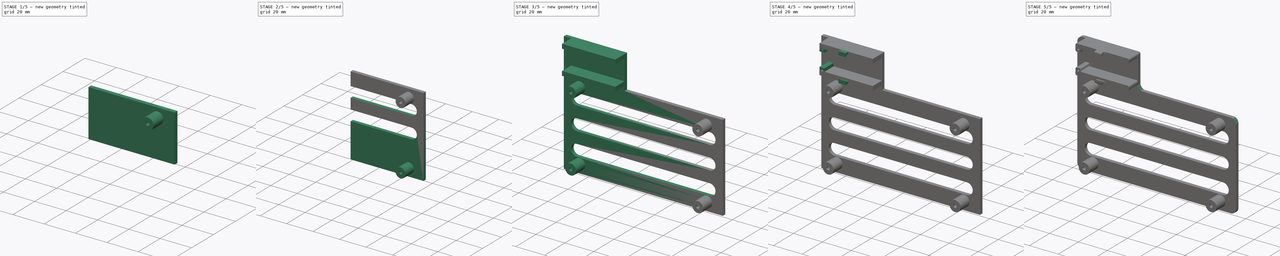
[diagram: build sequence overview — one tinted view per stage of 5, left to right]
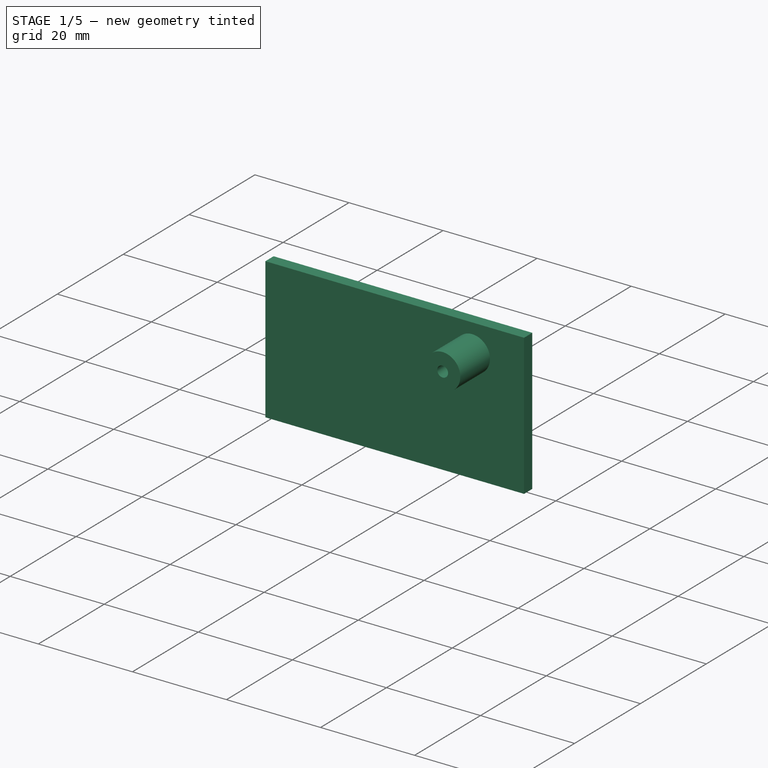
[diagram: stage 1 of 5 — iso view after this stage's code; geometry added in this stage tinted green]
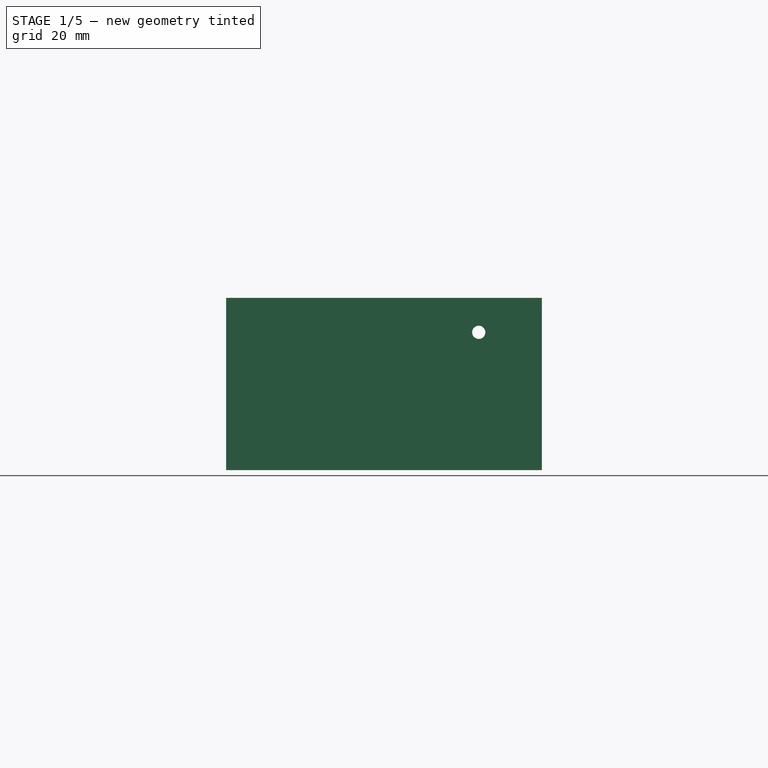
[diagram: stage 1 of 5 — front view after this stage's code; geometry added in this stage tinted green]
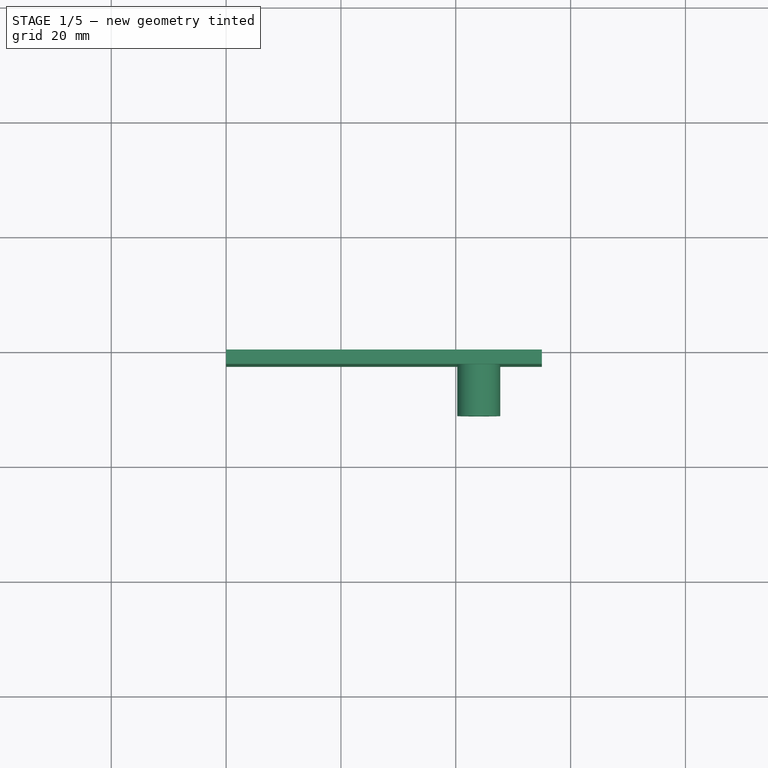
[diagram: stage 1 of 5 — top view after this stage's code; geometry added in this stage tinted green]
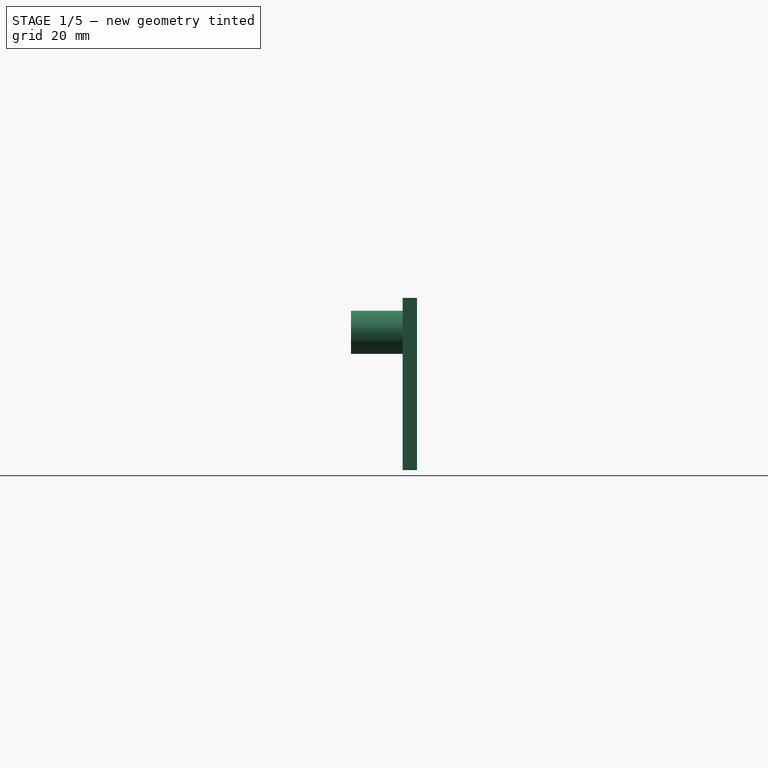
[diagram: stage 1 of 5 — right view after this stage's code; geometry added in this stage tinted green]
FCSTD DOCUMENT  (FreeCAD 1.0R39319 (Git))
Label: ConnectorBoardv2-Mod_Carrier_WIP
License: All rights reserved
LicenseURL: https://en.wikipedia.org/wiki/All_rights_reserved
objects: Sketcher::SketchObject×9, PartDesign::Pad×6, PartDesign::Pocket×3, PartDesign::Fillet×3, PartDesign::Mirrored×2, PartDesign::LinearPattern×2, PartDesign::Body×1, App::Part×1
note: 63 computed .brp shape members not serialized (recipe doc carries the construction recipe); baked Part::Feature solids carry a one-line shape summary decoded from their .brp

FEATURE [Sketcher::SketchObject] Sketch
  ArcFitTolerance = 1e-06
  AttachmentSupport = -> [XZ_Plane001]
  FullyConstrained = true
  MakeInternals = false
  MapMode = 5
  Placement = pos=(0,0,0) rot=(1,0,0;1.5708rad)
  sketch-geometry (4):
    g0: LineSegment StartX=0 StartY=0 StartZ=0 EndX=55 EndY=0 EndZ=0
    g1: LineSegment StartX=55 StartY=0 StartZ=0 EndX=55 EndY=30 EndZ=0
    g2: LineSegment StartX=55 StartY=30 StartZ=0 EndX=0 EndY=30 EndZ=0
    g3: LineSegment StartX=0 StartY=30 StartZ=0 EndX=0 EndY=0 EndZ=0
  constraints (11):
    c: Coincident(g0,g1)
    c: Coincident(g1,g2)
    c: Coincident(g2,g3)
    c: Coincident(g3,g0)
    c: Horizontal(g0)
    c: Horizontal(g2)
    c: Vertical(g1)
    c: Vertical(g3)
    c: Coincident(g0,g-1)
    c: DistanceX(g2,g2) = 55
    c: DistanceY(g1,g1) = 30
FEATURE [PartDesign::Pad] Pad
  Direction = (0,-1,2e-16)
  Length = 2.5
  Length2 = 10
  Placement = pos=(0,0,0) rot=(1,0,0;1.5708rad)
  Profile = -> Sketch
  ReferenceAxis = -> Sketch [N_Axis]
  Refine = true
  Suppressed = false
  Type = 0
FEATURE [Sketcher::SketchObject] Sketch001
  ArcFitTolerance = 1e-06
  AttachmentSupport = -> [Pad]
  FullyConstrained = true
  MakeInternals = false
  MapMode = 5
  Placement = pos=(0,-2.5,0) rot=(1,0,0;1.5708rad)
  sketch-geometry (1):
    g0: Circle CenterX=44 CenterY=24 CenterZ=0 NormalX=0 NormalY=0 NormalZ=1 AngleXU=0 Radius=3.75
  constraints (3):
    c: Diameter(g0) = 7.5
    c: Distance(g0,g-1) = 24
    c: Distance(g0,g-2) = 44
FEATURE [PartDesign::Pad] Pad001
  BaseFeature = -> Pad
  Direction = (0,-1,2e-16)
  Length = 9
  Length2 = 10
  Placement = pos=(0,0,0) rot=(1,0,0;1.5708rad)
  Profile = -> Sketch001
  ReferenceAxis = -> Sketch001 [N_Axis]
  Refine = true
  Suppressed = false
  Type = 0
FEATURE [Sketcher::SketchObject] Sketch002
  ArcFitTolerance = 1e-06
  AttachmentSupport = -> [Pad001]
  ExternalGeometry = -> [Pad001]
  FullyConstrained = true
  MakeInternals = false
  MapMode = 5
  Placement = pos=(0,-11.5,3.1e-15) rot=(1,0,0;1.5708rad)
  sketch-geometry (1):
    g0: Circle CenterX=44 CenterY=24 CenterZ=0 NormalX=0 NormalY=0 NormalZ=1 AngleXU=0 Radius=1.15
  constraints (2):
    c: Coincident(g0,g-3)
    c: Diameter(g0) = 2.3
FEATURE [PartDesign::Pocket] Pocket
  BaseFeature = -> Pad001
  Direction = (0,1,-2e-16)
  Length = 5
  Length2 = 5
  Placement = pos=(0,0,0) rot=(1,0,0;1.5708rad)
  Profile = -> Sketch002
  ReferenceAxis = -> Sketch002 [N_Axis]
  Refine = true
  Suppressed = false
  Type = 1
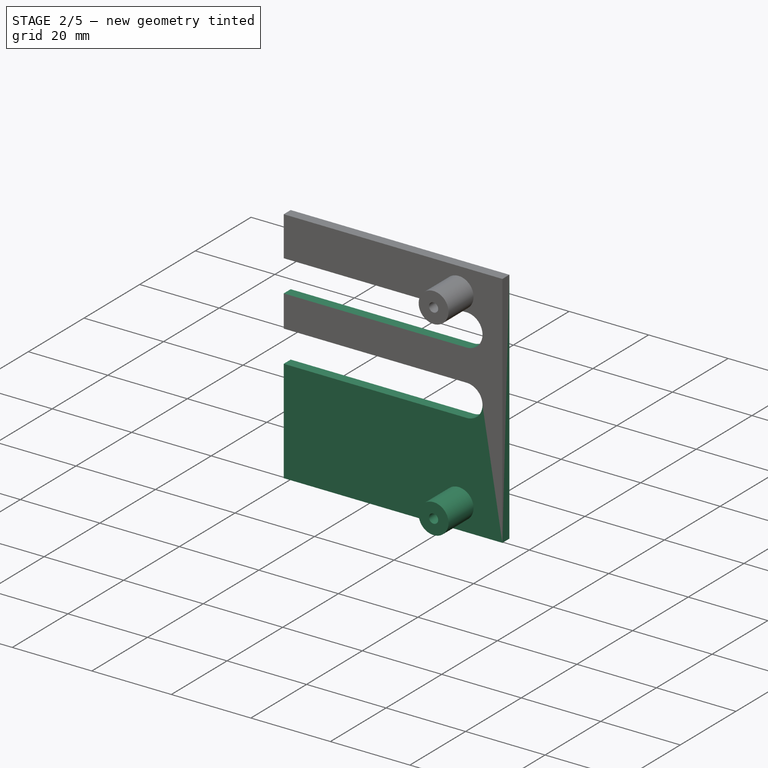
[diagram: stage 2 of 5 — iso view after this stage's code; geometry added in this stage tinted green]
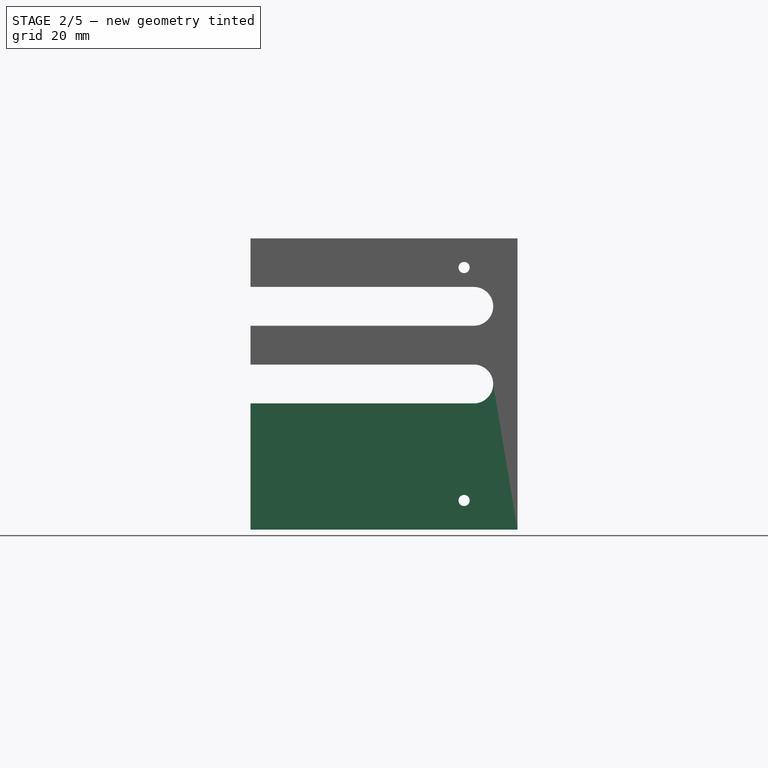
[diagram: stage 2 of 5 — front view after this stage's code; geometry added in this stage tinted green]
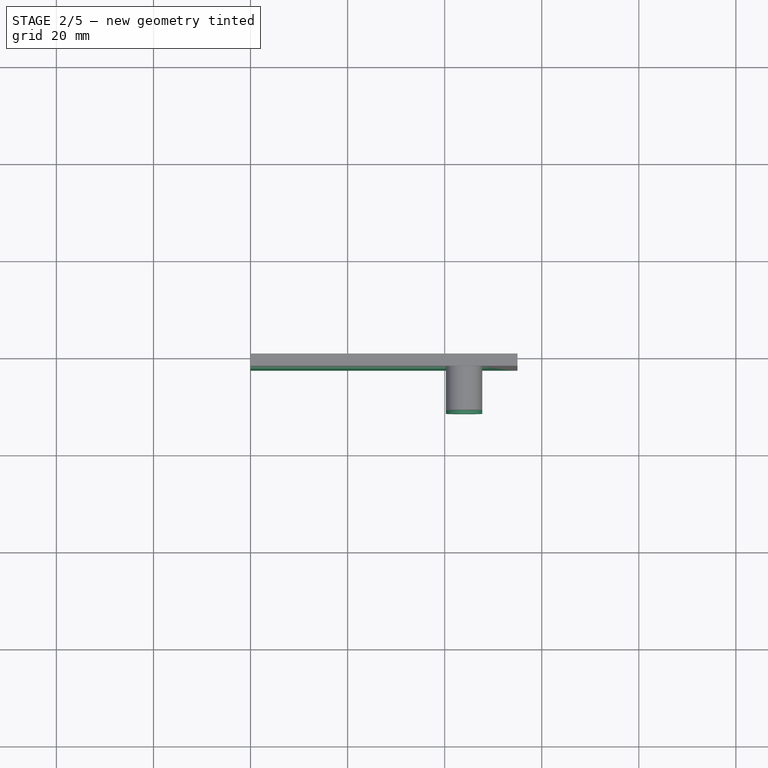
[diagram: stage 2 of 5 — top view after this stage's code; geometry added in this stage tinted green]
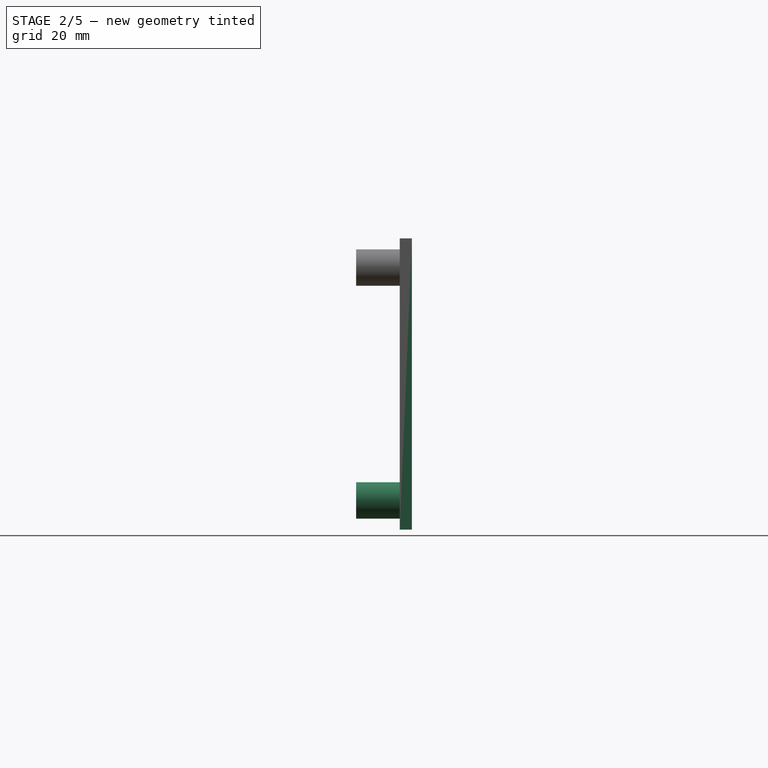
[diagram: stage 2 of 5 — right view after this stage's code; geometry added in this stage tinted green]
FEATURE [Sketcher::SketchObject] Sketch003
  ArcFitTolerance = 1e-06
  AttachmentSupport = -> [Pocket]
  FullyConstrained = true
  MakeInternals = false
  MapMode = 5
  Placement = pos=(0,-2.5,0) rot=(1,0,0;1.5708rad)
  sketch-geometry (4):
    g0: ArcOfCircle CenterX=0 CenterY=0 CenterZ=0 NormalX=0 NormalY=0 NormalZ=1 AngleXU=0 Radius=4 StartAngle=1.5708 EndAngle=4.71239
    g1: ArcOfCircle CenterX=46 CenterY=1e-16 CenterZ=0 NormalX=0 NormalY=0 NormalZ=1 AngleXU=0 Radius=4 StartAngle=4.71239 EndAngle=7.85398
    g2: LineSegment StartX=6.5994e-12 StartY=4 StartZ=0 EndX=46 EndY=4 EndZ=0
    g3: LineSegment StartX=-7e-16 StartY=-4 StartZ=0 EndX=46 EndY=-4 EndZ=0
  constraints (9):
    c: Tangent(g0,g2) = 1.5708
    c: Tangent(g0,g3) = -1.5708
    c: Tangent(g1,g2) = 1.5708
    c: Tangent(g1,g3) = -1.5708
    c: Equal(g0,g1)
    c: Horizontal(g3)
    c: Coincident(g0,g-1)
    c: Distance(g2,g-1) = 4
    c: DistanceX(g2,g2) = 46
FEATURE [PartDesign::Pocket] Pocket001
  BaseFeature = -> Pocket
  Direction = (0,1,-2e-16)
  Length = 5
  Length2 = 5
  Placement = pos=(0,0,0) rot=(1,0,0;1.5708rad)
  Profile = -> Sketch003
  ReferenceAxis = -> Sketch003 [N_Axis]
  Refine = true
  Suppressed = false
  Type = 1
FEATURE [PartDesign::Mirrored] Mirrored
  BaseFeature = -> Pocket001
  MirrorPlane = -> XY_Plane001
  Placement = pos=(0,0,0) rot=(1,0,0;1.5708rad)
  Refine = true
  Suppressed = false
  TransformMode = 1
FEATURE [PartDesign::LinearPattern] LinearPattern
  BaseFeature = -> Mirrored
  Direction = -> Z_Axis001
  Length = 16
  Mode = 1
  Occurrences = 2
  Offset = 16
  Originals = -> [Pocket001]
  Placement = pos=(0,0,0) rot=(1,0,0;1.5708rad)
  Refine = true
  Suppressed = false
  TransformMode = 0
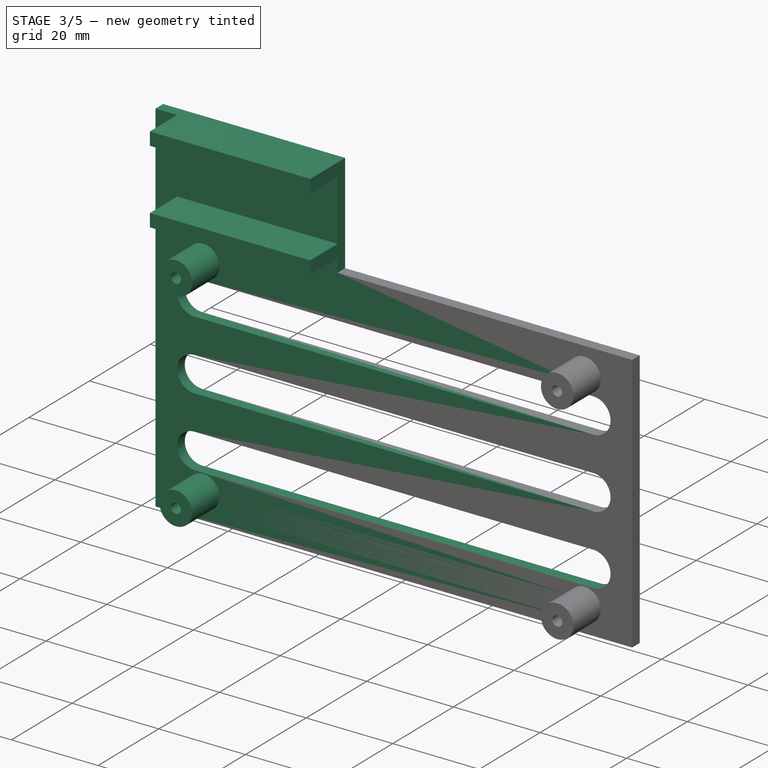
[diagram: stage 3 of 5 — iso view after this stage's code; geometry added in this stage tinted green]
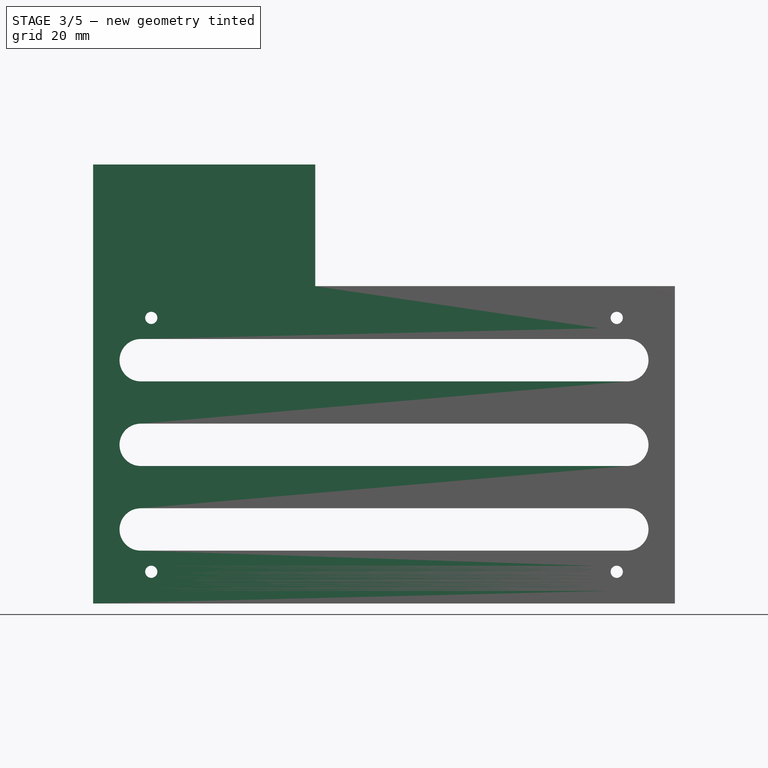
[diagram: stage 3 of 5 — front view after this stage's code; geometry added in this stage tinted green]
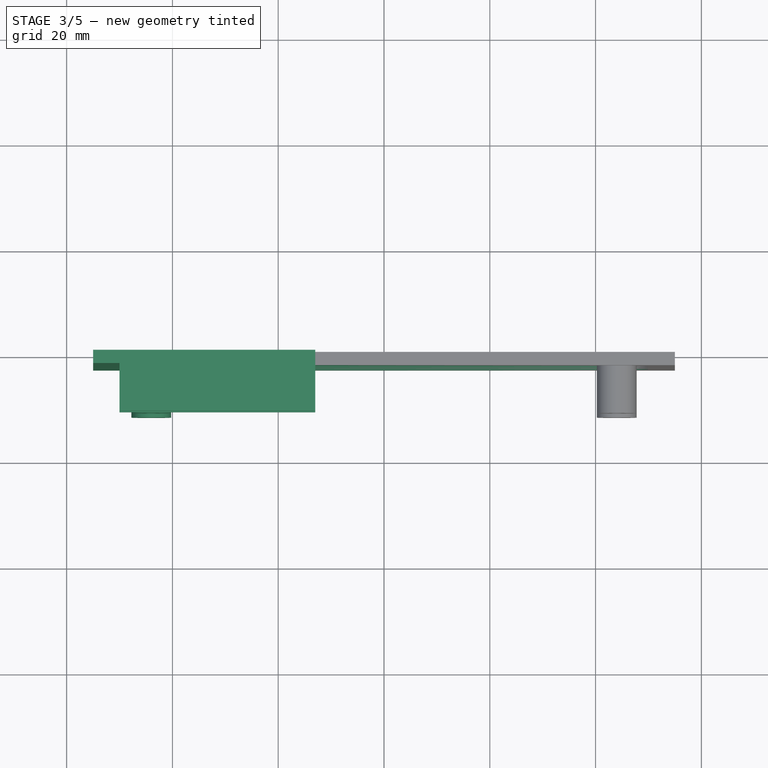
[diagram: stage 3 of 5 — top view after this stage's code; geometry added in this stage tinted green]
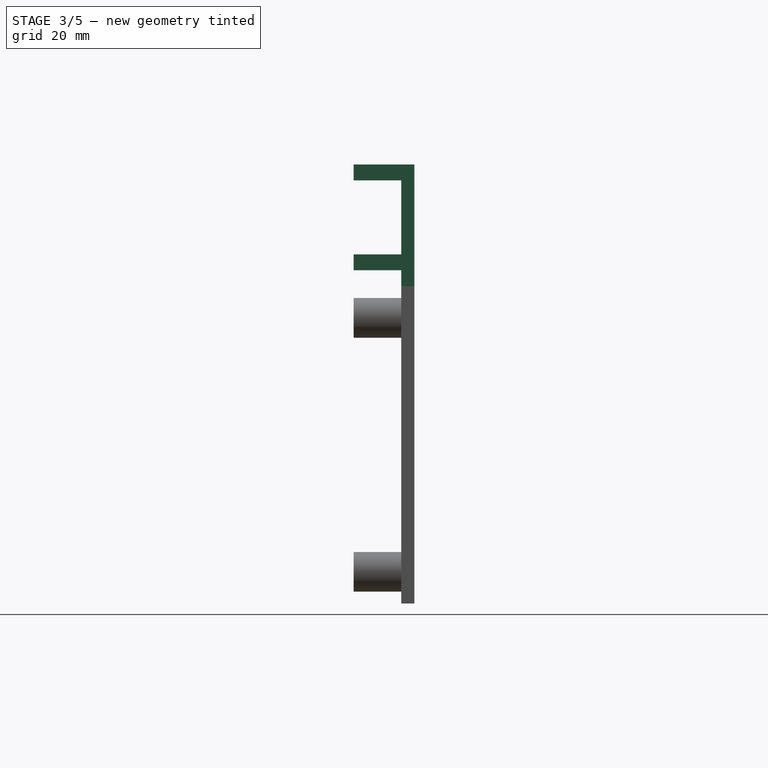
[diagram: stage 3 of 5 — right view after this stage's code; geometry added in this stage tinted green]
FEATURE [PartDesign::LinearPattern] LinearPattern001
  BaseFeature = -> LinearPattern
  Direction = -> Z_Axis001
  Length = 16
  Mode = 1
  Occurrences = 2
  Offset = 16
  Originals = -> [Pocket001]
  Placement = pos=(0,0,0) rot=(1,0,0;1.5708rad)
  Refine = true
  Reversed = true
  Suppressed = false
  TransformMode = 0
FEATURE [PartDesign::Mirrored] Mirrored001
  BaseFeature = -> LinearPattern001
  MirrorPlane = -> YZ_Plane001
  Placement = pos=(0,0,0) rot=(1,0,0;1.5708rad)
  Refine = true
  Suppressed = false
  TransformMode = 1
FEATURE [Sketcher::SketchObject] Sketch004
  ArcFitTolerance = 1e-06
  AttachmentSupport = -> [XZ_Plane001]
  ExternalGeometry = -> [Mirrored001]
  FullyConstrained = true
  MakeInternals = false
  MapMode = 5
  Placement = pos=(0,0,0) rot=(1,0,0;1.5708rad)
  sketch-geometry (4):
    g0: LineSegment StartX=-55 StartY=30 StartZ=0 EndX=-13 EndY=30 EndZ=0
    g1: LineSegment StartX=-13 StartY=30 StartZ=0 EndX=-13 EndY=53 EndZ=0
    g2: LineSegment StartX=-13 StartY=53 StartZ=0 EndX=-55 EndY=53 EndZ=0
    g3: LineSegment StartX=-55 StartY=53 StartZ=0 EndX=-55 EndY=30 EndZ=0
  constraints (11):
    c: Coincident(g0,g1)
    c: Coincident(g1,g2)
    c: Coincident(g2,g3)
    c: Coincident(g3,g0)
    c: Horizontal(g0)
    c: Horizontal(g2)
    c: Vertical(g1)
    c: Vertical(g3)
    c: Coincident(g0,g-4)
    c: DistanceY(g3,g3) = 23
    c: DistanceX(g2,g2) = 42
FEATURE [PartDesign::Pad] Pad002
  BaseFeature = -> Mirrored001
  Direction = (0,-1,2e-16)
  Length = 10
  Length2 = 10
  Placement = pos=(0,0,0) rot=(1,0,0;1.5708rad)
  Profile = -> Sketch004
  ReferenceAxis = -> Sketch004 [N_Axis]
  Refine = true
  Suppressed = false
  Type = 3
  UpToFace = -> Mirrored001 [Face23]
FEATURE [Sketcher::SketchObject] Sketch005
  ArcFitTolerance = 1e-06
  AttachmentSupport = -> [Pad002]
  ExternalGeometry = -> [Pad002]
  FullyConstrained = true
  MakeInternals = false
  MapMode = 5
  Placement = pos=(0,-2.5,2e-16) rot=(1,0,0;1.5708rad)
  sketch-geometry (8):
    g0: LineSegment StartX=-50 StartY=53 StartZ=0 EndX=-50 EndY=50 EndZ=0
    g1: LineSegment StartX=-50 StartY=50 StartZ=0 EndX=-13 EndY=50 EndZ=0
    g2: LineSegment StartX=-13 StartY=50 StartZ=0 EndX=-13 EndY=53 EndZ=0
    g3: LineSegment StartX=-13 StartY=53 StartZ=0 EndX=-50 EndY=53 EndZ=0
    g4: LineSegment StartX=-50 StartY=36 StartZ=0 EndX=-50 EndY=33 EndZ=0
    g5: LineSegment StartX=-50 StartY=33 StartZ=0 EndX=-13 EndY=33 EndZ=0
    g6: LineSegment StartX=-13 StartY=33 StartZ=0 EndX=-13 EndY=36 EndZ=0
    g7: LineSegment StartX=-13 StartY=36 StartZ=0 EndX=-50 EndY=36 EndZ=0
  constraints (24):
    c: Coincident(g0,g1)
    c: Coincident(g1,g2)
    c: Coincident(g2,g3)
    c: Coincident(g3,g0)
    c: Vertical(g0)
    c: Vertical(g2)
    c: Horizontal(g1)
    c: Horizontal(g3)
    c: Coincident(g4,g5)
    c: Coincident(g5,g6)
    c: Coincident(g6,g7)
    c: Coincident(g7,g4)
    c: Vertical(g4)
    c: Vertical(g6)
    c: Horizontal(g5)
    c: Horizontal(g7)
    c: DistanceY(g2,g2) = 3
    c: DistanceY(g6,g6) = 3
    c: Distance(g1,g7) = 14
    c: PointOnObject(g2,g-3)
    c: PointOnObject(g0,g4)
    c: PointOnObject(g1,g6)
    c: DistanceX(g3,g3) = 37
    c: Distance(g-2,g0) = 50
FEATURE [PartDesign::Pad] Pad003
  BaseFeature = -> Pad002
  Direction = (0,-1,2e-16)
  Length = 9
  Length2 = 10
  Placement = pos=(0,0,0) rot=(1,0,0;1.5708rad)
  Profile = -> Sketch005
  ReferenceAxis = -> Sketch005 [N_Axis]
  Refine = true
  Suppressed = false
  Type = 0
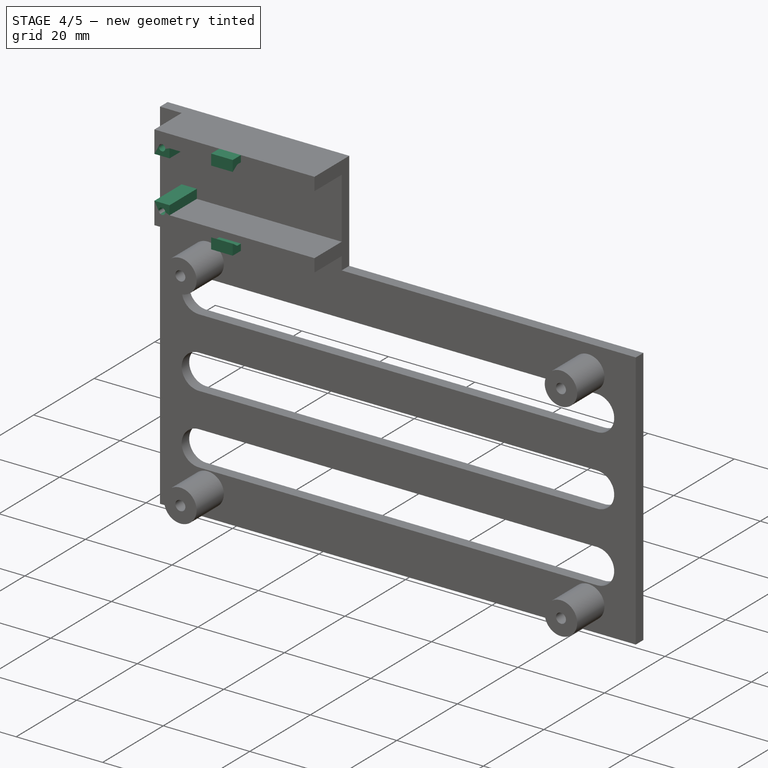
[diagram: stage 4 of 5 — iso view after this stage's code; geometry added in this stage tinted green]
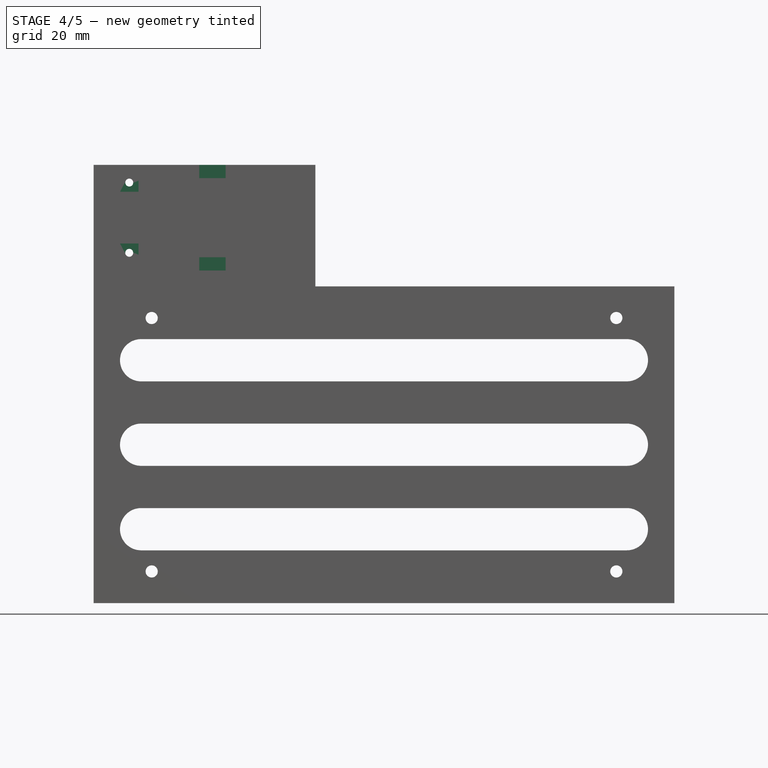
[diagram: stage 4 of 5 — front view after this stage's code; geometry added in this stage tinted green]
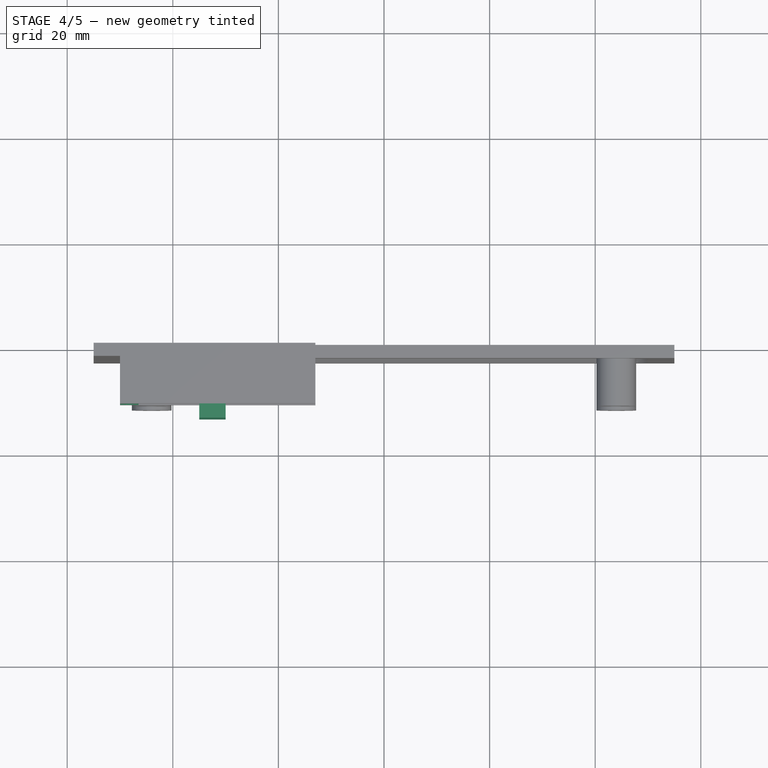
[diagram: stage 4 of 5 — top view after this stage's code; geometry added in this stage tinted green]
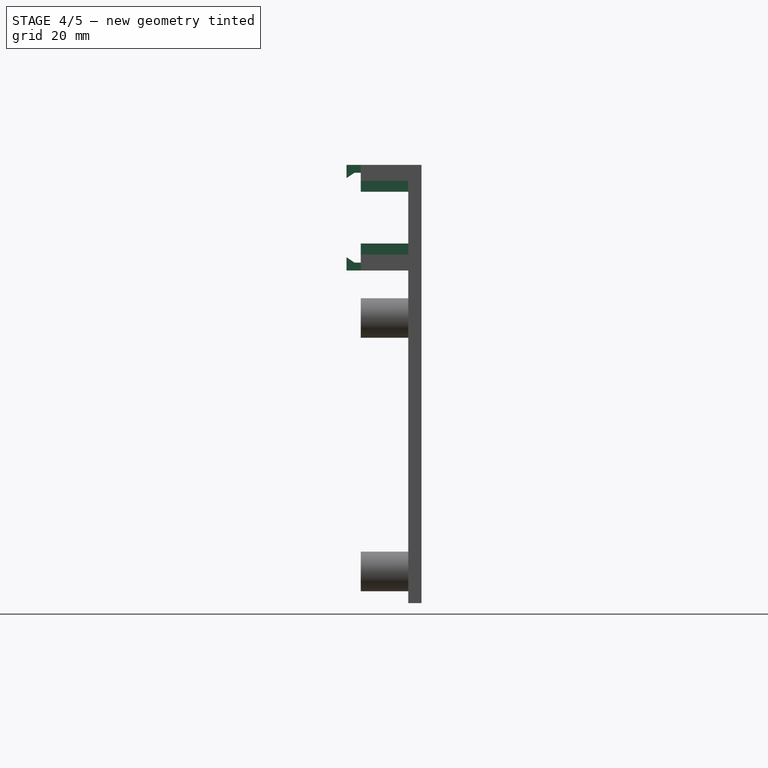
[diagram: stage 4 of 5 — right view after this stage's code; geometry added in this stage tinted green]
FEATURE [Sketcher::SketchObject] Sketch006
  ArcFitTolerance = 1e-06
  AttachmentSupport = -> [Pad003]
  ExternalGeometry = -> [Pad003]
  FullyConstrained = false
  MakeInternals = false
  MapMode = 5
  Placement = pos=(0,-11.5,0) rot=(1,0,0;1.5708rad)
  sketch-geometry (9):
    g0: LineSegment StartX=-50 StartY=50 StartZ=0 EndX=-50 EndY=47.9 EndZ=0
    g1: LineSegment StartX=-50 StartY=47.9 StartZ=0 EndX=-46.5 EndY=47.9 EndZ=0
    g2: LineSegment StartX=-46.5 StartY=47.9 StartZ=0 EndX=-46.5 EndY=50 EndZ=0
    g3: LineSegment StartX=-46.5 StartY=50 StartZ=0 EndX=-50 EndY=50 EndZ=0
    g4: LineSegment StartX=-50 StartY=38.1 StartZ=0 EndX=-50 EndY=36 EndZ=0
    g5: LineSegment StartX=-50 StartY=36 StartZ=0 EndX=-46.5 EndY=36 EndZ=0
    g6: LineSegment StartX=-46.5 StartY=36 StartZ=0 EndX=-46.5 EndY=38.1 EndZ=0
    g7: LineSegment StartX=-46.5 StartY=38.1 StartZ=0 EndX=-50 EndY=38.1 EndZ=0
    g8: LineSegment [constr] StartX=-51.203 StartY=43 StartZ=0 EndX=-13 EndY=43 EndZ=0
  constraints (23):
    c: Coincident(g0,g1)
    c: Coincident(g1,g2)
    c: Coincident(g2,g3)
    c: Coincident(g3,g0)
    c: Vertical(g0)
    c: Vertical(g2)
    c: Horizontal(g1)
    c: Horizontal(g3)
    c: Coincident(g4,g5)
    c: Coincident(g5,g6)
    c: Coincident(g6,g7)
    c: Coincident(g7,g4)
    c: Vertical(g4)
    c: Vertical(g6)
    c: Horizontal(g5)
    c: Horizontal(g7)
    c: Distance(g1,g7) = 9.8
    c: DistanceX(g3,g3) = 3.5
    c: PointOnObject(g1,g6)
    c: Coincident(g0,g-6)
    c: Coincident(g4,g-5)
    c: Symmetric(g-3,g-4,g8)
    c: Symmetric(g1,g6,g8)
FEATURE [PartDesign::Pad] Pad004
  BaseFeature = -> Pad003
  Direction = (0,-1,2e-16)
  Length = 10
  Length2 = 10
  Placement = pos=(0,0,0) rot=(1,0,0;1.5708rad)
  Profile = -> Sketch006
  ReferenceAxis = -> Sketch006 [N_Axis]
  Refine = true
  Suppressed = false
  Type = 3
  UpToFace = -> Pad003 [Face3]
FEATURE [Sketcher::SketchObject] Sketch007
  ArcFitTolerance = 1e-06
  AttachmentSupport = -> [Pad004]
  ExternalGeometry = -> [Pad004]
  FullyConstrained = true
  MakeInternals = false
  MapMode = 5
  Placement = pos=(0,-11.5,1.33e-14) rot=(1,0,0;1.5708rad)
  sketch-geometry (6):
    g0: Circle CenterX=-48.25 CenterY=49.65 CenterZ=0 NormalX=0 NormalY=0 NormalZ=1 AngleXU=0 Radius=0.75
    g1: Circle CenterX=-48.25 CenterY=36.35 CenterZ=0 NormalX=0 NormalY=0 NormalZ=1 AngleXU=0 Radius=0.75
    g2: LineSegment [constr] StartX=-48.25 StartY=36.35 StartZ=0 EndX=-48.25 EndY=49.65 EndZ=0
    g3: GeomPoint [constr] X=-48.25 Y=43 Z=0
    g4: GeomPoint [constr] X=-48.25 Y=47.9 Z=0
    g5: GeomPoint [constr] X=-48.25 Y=38.1 Z=0
  constraints (10):
    c: Coincident(g2,g1)
    c: Coincident(g2,g0)
    c: Vertical(g2)
    c: Diameter(g0) = 1.5
    c: Diameter(g1) = 1.5
    c: DistanceY(g2,g2) = 13.3
    c: Symmetric(g2,g2,g3)
    c: Symmetric(g-3,g-3,g4)
    c: Symmetric(g-4,g-4,g5)
    c: Symmetric(g4,g5,g3)
FEATURE [PartDesign::Pocket] Pocket002
  BaseFeature = -> Pad004
  Direction = (0,1,-1.1e-15)
  Length = 5
  Length2 = 5
  Placement = pos=(0,0,0) rot=(1,0,0;1.5708rad)
  Profile = -> Sketch007
  ReferenceAxis = -> Sketch007 [N_Axis]
  Refine = true
  Suppressed = false
  Type = 1
FEATURE [Sketcher::SketchObject] Sketch008
  ArcFitTolerance = 1e-06
  AttachmentSupport = -> [Pocket002]
  ExternalGeometry = -> [Pocket002]
  FullyConstrained = true
  MakeInternals = false
  MapMode = 5
  Placement = pos=(-13,-1.65e-14,9.9e-15) rot=(0.707107,0,0.707107;3.14159rad)
  sketch-geometry (10):
    g0: LineSegment StartX=51.5 StartY=11.5 StartZ=0 EndX=51.5 EndY=12.7 EndZ=0
    g1: LineSegment StartX=51.5 StartY=12.7 StartZ=0 EndX=50.5 EndY=14.2 EndZ=0
    g2: LineSegment StartX=50.5 StartY=14.2 StartZ=0 EndX=53 EndY=14.2 EndZ=0
    g3: LineSegment StartX=53 StartY=14.2 StartZ=0 EndX=53 EndY=11.5 EndZ=0
    g4: LineSegment StartX=53 StartY=11.5 StartZ=0 EndX=51.5 EndY=11.5 EndZ=0
    g5: LineSegment StartX=33 StartY=11.5 StartZ=0 EndX=34.5 EndY=11.5 EndZ=0
    g6: LineSegment StartX=34.5 StartY=11.5 StartZ=0 EndX=34.5 EndY=12.7 EndZ=0
    g7: LineSegment StartX=34.5 StartY=12.7 StartZ=0 EndX=35.5 EndY=14.2 EndZ=0
    g8: LineSegment StartX=35.5 StartY=14.2 StartZ=0 EndX=33 EndY=14.2 EndZ=0
    g9: LineSegment StartX=33 StartY=14.2 StartZ=0 EndX=33 EndY=11.5 EndZ=0
  constraints (28):
    c: Vertical(g0)
    c: Coincident(g0,g1)
    c: Coincident(g1,g2)
    c: Horizontal(g2)
    c: Coincident(g2,g3)
    c: Vertical(g3)
    c: Coincident(g3,g4)
    c: Coincident(g4,g0)
    c: Horizontal(g4)
    c: Horizontal(g5)
    c: Coincident(g5,g6)
    c: Vertical(g6)
    c: Coincident(g6,g7)
    c: Coincident(g7,g8)
    c: Horizontal(g8)
    c: Coincident(g8,g9)
    c: Coincident(g9,g5)
    c: Vertical(g9)
    c: DistanceY(g0,g0) = 1.2
    c: DistanceY(g6,g6) = 1.2
    c: DistanceY(g6,g8) = 1.5
    c: DistanceY(g0,g2) = 1.5
    c: DistanceX(g2,g2) = 2.5
    c: DistanceX(g8,g8) = 2.5
    c: Coincident(g5,g-3)
    c: DistanceX(g5,g5) = 1.5
    c: DistanceX(g4,g4) = 1.5
    c: Coincident(g3,g-4)
FEATURE [PartDesign::Pad] Pad005
  BaseFeature = -> Pocket002
  Direction = (1,0,0)
  Length = 22
  Length2 = -17
  Offset = 8
  Placement = pos=(0,0,0) rot=(1,0,0;1.5708rad)
  Profile = -> Sketch008
  ReferenceAxis = -> X_Axis001
  Refine = true
  Reversed = true
  Suppressed = false
  Type = 4
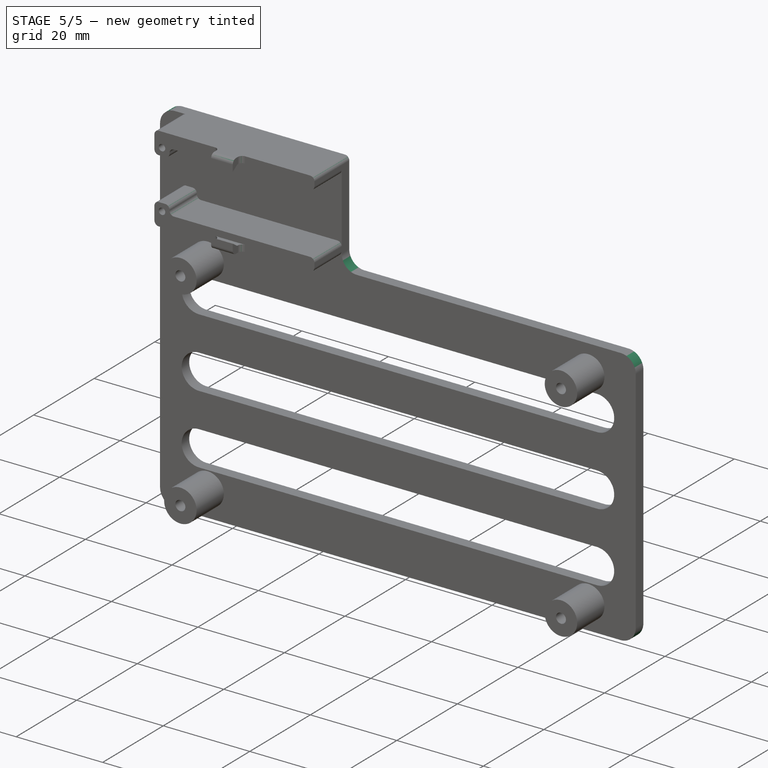
[diagram: stage 5 of 5 — iso view after this stage's code; geometry added in this stage tinted green]
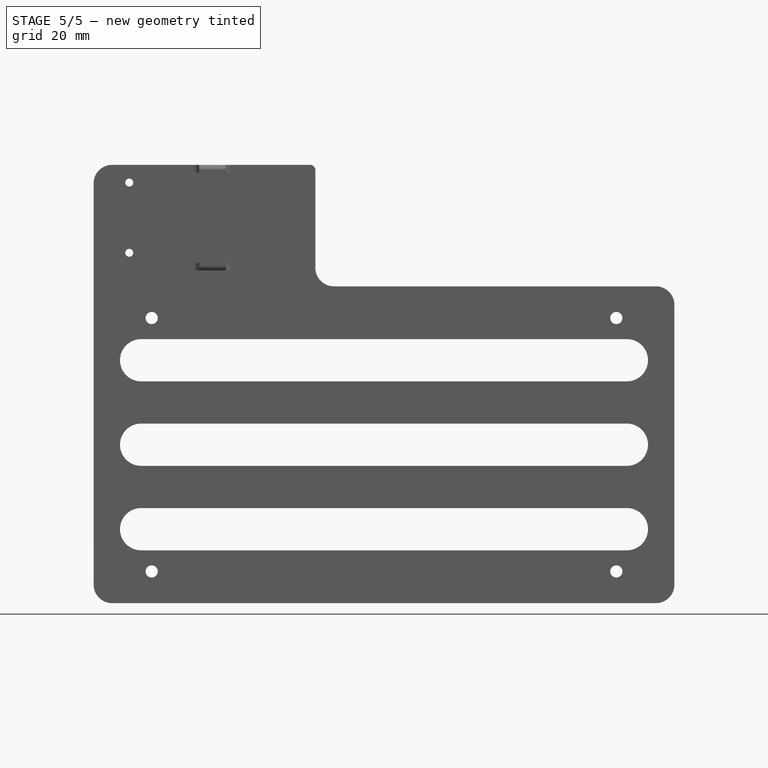
[diagram: stage 5 of 5 — front view after this stage's code; geometry added in this stage tinted green]
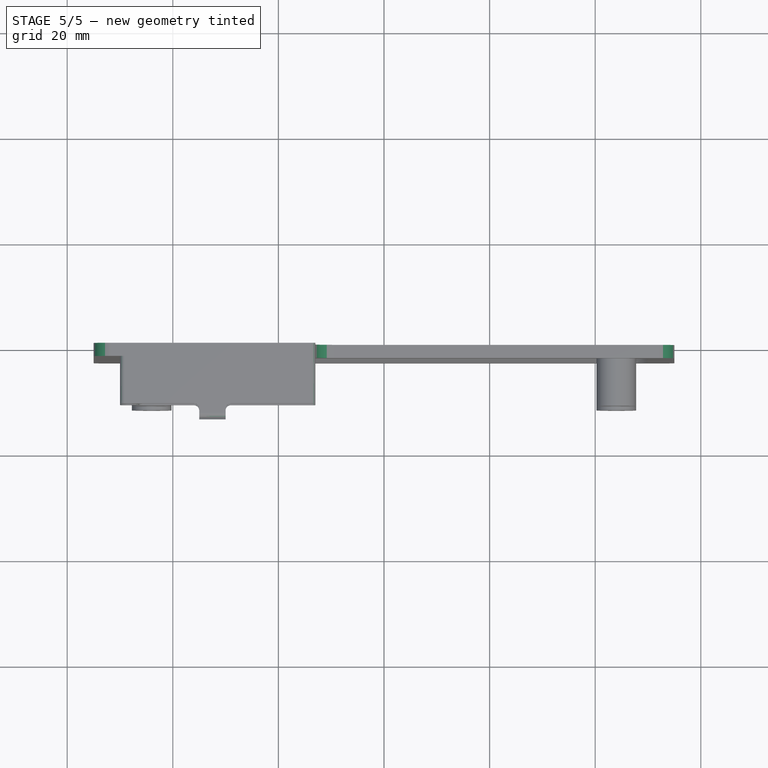
[diagram: stage 5 of 5 — top view after this stage's code; geometry added in this stage tinted green]
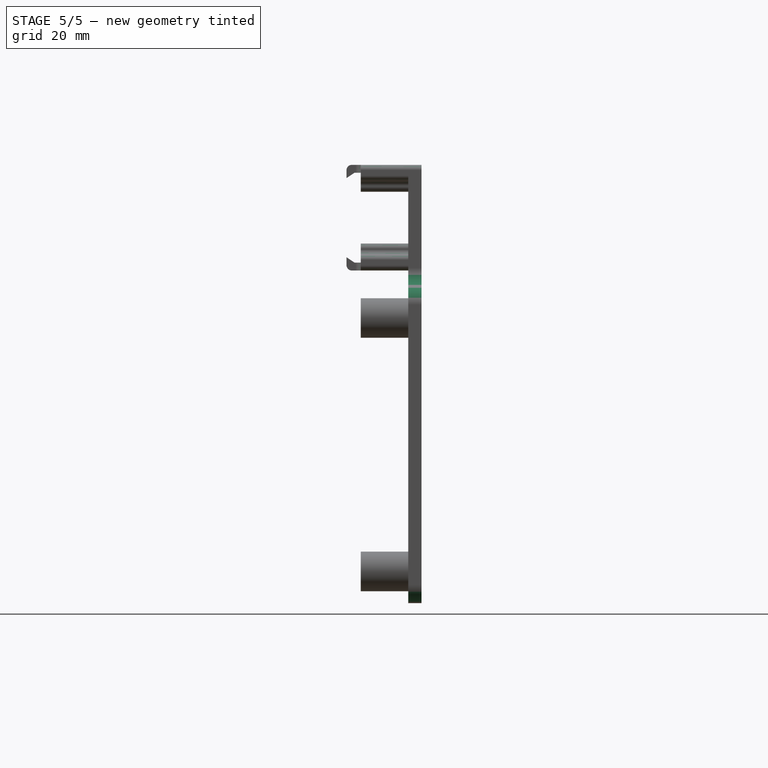
[diagram: stage 5 of 5 — right view after this stage's code; geometry added in this stage tinted green]
FEATURE [PartDesign::Fillet] Fillet
  Base = -> Pad005 [Edge128,Edge151,Edge126,Edge123,Edge121,Edge149]
  BaseFeature = -> Pad005
  Placement = pos=(0,0,0) rot=(1,0,0;1.5708rad)
  Radius = 1
  Refine = true
  SupportTransform = false
  Suppressed = false
  UseAllEdges = false
FEATURE [PartDesign::Fillet] Fillet001
  Base = -> Fillet [Edge27,Edge32,Edge15,Edge123,Edge129,Edge128,Edge37,Edge43,Edge23,Edge41,Edge34,Edge107]
  BaseFeature = -> Fillet
  Placement = pos=(0,0,0) rot=(1,0,0;1.5708rad)
  Radius = 1
  Refine = true
  SupportTransform = false
  Suppressed = false
  UseAllEdges = false
FEATURE [PartDesign::Fillet] Fillet002
  Base = -> Fillet001 [Edge57,Edge26,Edge109,Edge156,Edge135]
  BaseFeature = -> Fillet001
  Placement = pos=(0,0,0) rot=(1,0,0;1.5708rad)
  Radius = 3.5
  Refine = true
  SupportTransform = false
  Suppressed = false
  UseAllEdges = false
FEATURE [PartDesign::Body] Body  label="ConnectorBoardv2-Mod_Carrier001"
  AllowCompound = false
  Group = -> [Sketch,Pad,Sketch001,Pad001,Sketch002,Pocket,Sketch003,Pocket001,Mirrored,LinearPattern,LinearPattern001,Mirrored001,Sketch004,Pad002,Sketch005,Pad003,Sketch006,Pad004,Sketch007,Pocket002,Sketch008,Pad005,Fillet,Fillet001,Fillet002]
  Origin = -> Origin001
  Tip = -> Fillet002
FEATURE [App::Part] Part  label="ConnectorBoardv2-Mod_Carrier"
  Group = -> [Body]
  Origin = -> Origin
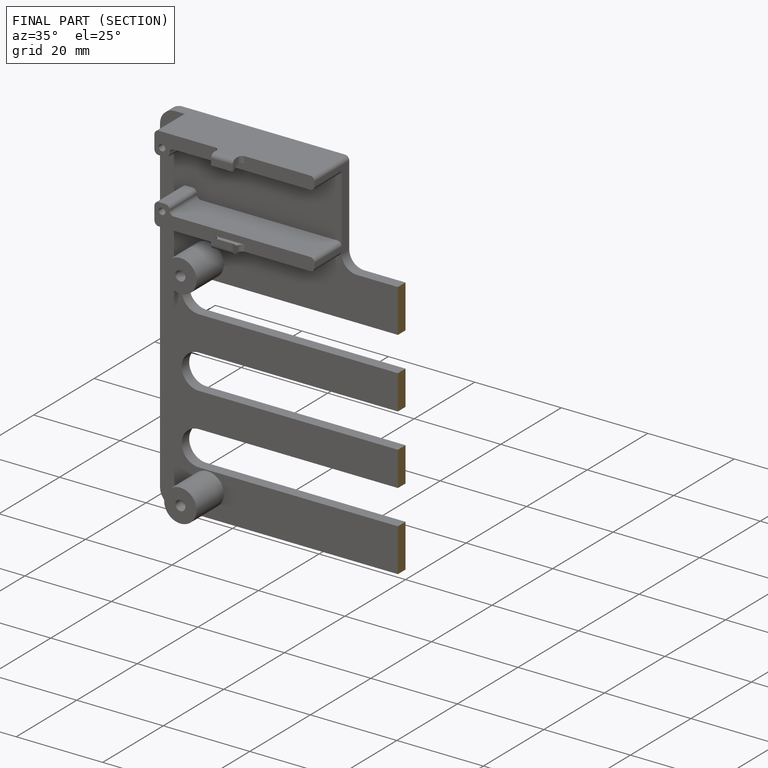
[diagram: finished part — half-section view (interior)]
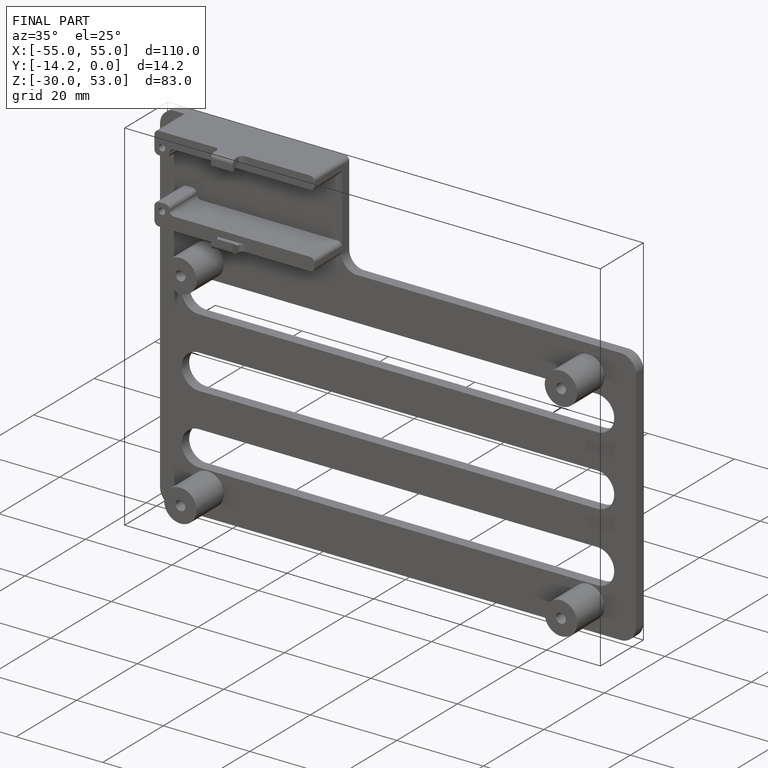
[diagram: finished part — iso view with bounding-box wireframe]
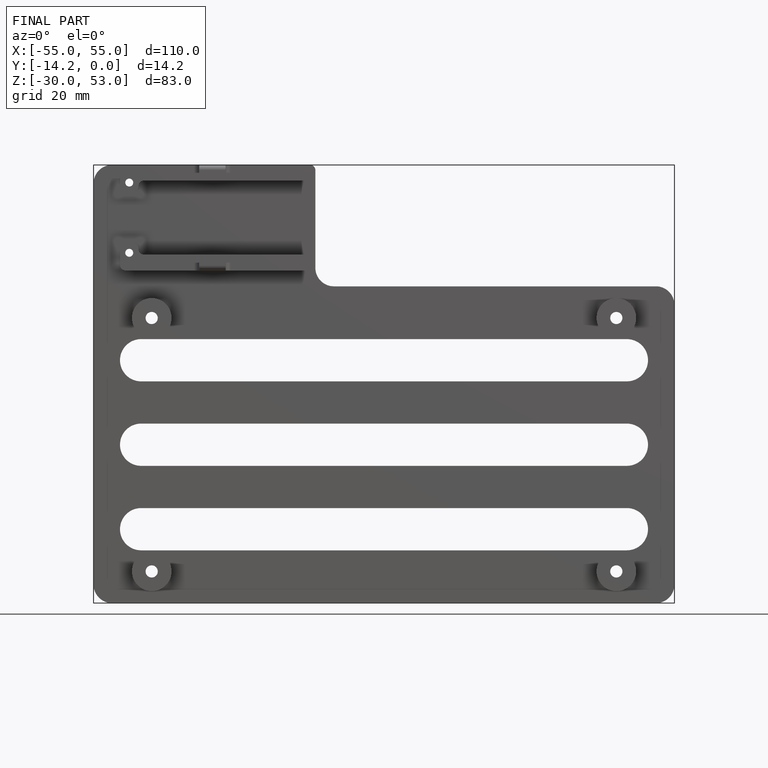
[diagram: finished part — front view with bounding-box wireframe]
